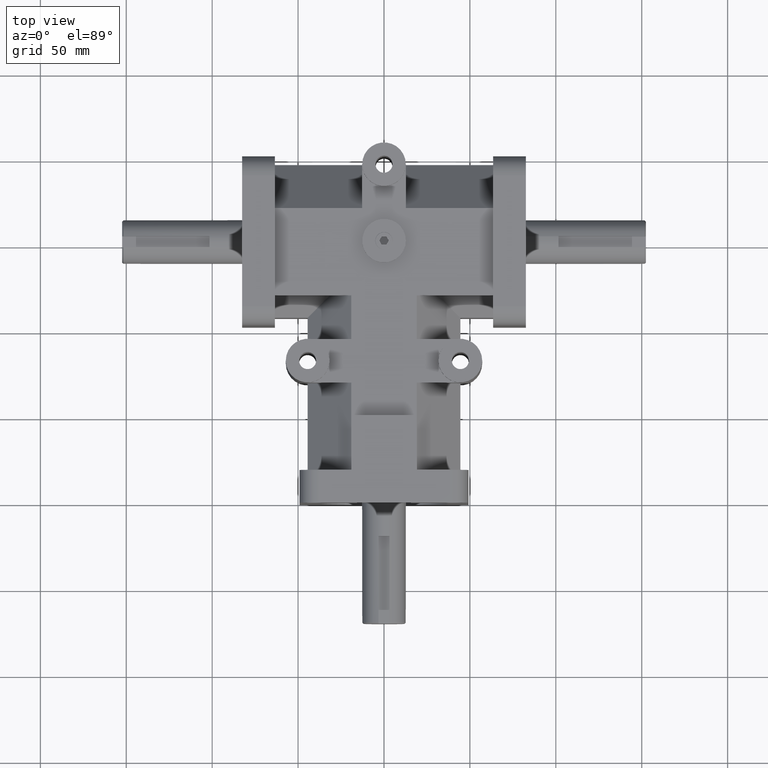
[diagram: clean part render]
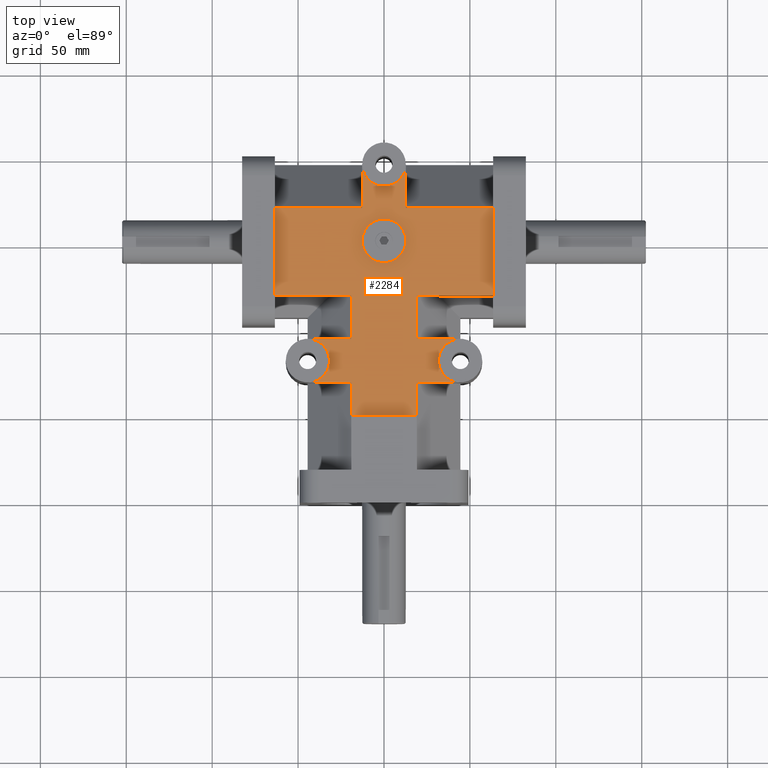
[diagram: same view with one face highlighted and labeled with its STEP entity id]
A machine part, top view. The second image highlights one B-rep face of the part: STEP entity #2284.
In plain terms, the highlighted planar face has unit normal (0, 0, 1).
Its self-contained STEP definition (entity closure, byte-faithful):
#81=CIRCLE('',#2444,0.5);
#82=CIRCLE('',#2445,0.5);
#83=CIRCLE('',#2446,0.5);
#84=CIRCLE('',#2447,0.5);
#175=VERTEX_POINT('',#3250);
#177=VERTEX_POINT('',#3254);
#180=VERTEX_POINT('',#3260);
#181=VERTEX_POINT('',#3261);
#194=VERTEX_POINT('',#3289);
#201=VERTEX_POINT('',#3305);
#202=VERTEX_POINT('',#3307);
#203=VERTEX_POINT('',#3309);
#204=VERTEX_POINT('',#3311);
#205=VERTEX_POINT('',#3313);
#206=VERTEX_POINT('',#3315);
#207=VERTEX_POINT('',#3317);
#208=VERTEX_POINT('',#3319);
#209=VERTEX_POINT('',#3321);
#210=VERTEX_POINT('',#3323);
#211=VERTEX_POINT('',#3325);
#212=VERTEX_POINT('',#3327);
#213=VERTEX_POINT('',#3328);
#214=VERTEX_POINT('',#3330);
#215=VERTEX_POINT('',#3332);
#216=VERTEX_POINT('',#3335);
#413=VECTOR('',#2669,1.);
#421=VECTOR('',#2694,1.);
#429=VECTOR('',#2703,1.);
#430=VECTOR('',#2704,1.);
#431=VECTOR('',#2705,1.);
#432=VECTOR('',#2708,1.);
#433=VECTOR('',#2709,1.);
#434=VECTOR('',#2710,1.);
#435=VECTOR('',#2713,1.);
#436=VECTOR('',#2714,1.);
#437=VECTOR('',#2715,1.);
#438=VECTOR('',#2716,1.);
#439=VECTOR('',#2719,1.);
#440=VECTOR('',#2720,1.);
#614=LINE('',#3255,#413);
#622=LINE('',#3288,#421);
#630=LINE('',#3304,#429);
#631=LINE('',#3306,#430);
#632=LINE('',#3308,#431);
#633=LINE('',#3312,#432);
#634=LINE('',#3314,#433);
#635=LINE('',#3316,#434);
#636=LINE('',#3320,#435);
#637=LINE('',#3322,#436);
#638=LINE('',#3324,#437);
#639=LINE('',#3326,#438);
#640=LINE('',#3331,#439);
#641=LINE('',#3333,#440);
#815=EDGE_CURVE('',#175,#177,#614,.T.);
#818=EDGE_CURVE('',#181,#180,#614,.T.);
#832=EDGE_CURVE('',#194,#181,#622,.T.);
#840=EDGE_CURVE('',#177,#201,#630,.T.);
#841=EDGE_CURVE('',#202,#201,#631,.T.);
#842=EDGE_CURVE('',#203,#202,#632,.T.);
#843=EDGE_CURVE('',#203,#204,#81,.T.);
#844=EDGE_CURVE('',#205,#204,#633,.T.);
#845=EDGE_CURVE('',#194,#205,#631,.T.);
#846=EDGE_CURVE('',#180,#206,#634,.T.);
#847=EDGE_CURVE('',#207,#206,#635,.T.);
#848=EDGE_CURVE('',#207,#208,#82,.T.);
#849=EDGE_CURVE('',#209,#208,#636,.T.);
#850=EDGE_CURVE('',#210,#209,#637,.T.);
#851=EDGE_CURVE('',#210,#211,#638,.T.);
#852=EDGE_CURVE('',#212,#211,#639,.T.);
#853=EDGE_CURVE('',#213,#212,#636,.T.);
#854=EDGE_CURVE('',#213,#214,#83,.T.);
#855=EDGE_CURVE('',#215,#214,#640,.T.);
#856=EDGE_CURVE('',#215,#175,#641,.T.);
#857=EDGE_CURVE('',#216,#216,#84,.T.);
#1174=ORIENTED_EDGE('',*,*,#840,.T.);
#1175=ORIENTED_EDGE('',*,*,#841,.F.);
#1176=ORIENTED_EDGE('',*,*,#842,.F.);
#1177=ORIENTED_EDGE('',*,*,#843,.T.);
#1178=ORIENTED_EDGE('',*,*,#844,.F.);
#1179=ORIENTED_EDGE('',*,*,#845,.F.);
#1180=ORIENTED_EDGE('',*,*,#832,.T.);
#1181=ORIENTED_EDGE('',*,*,#818,.T.);
#1182=ORIENTED_EDGE('',*,*,#846,.T.);
#1183=ORIENTED_EDGE('',*,*,#847,.F.);
#1184=ORIENTED_EDGE('',*,*,#848,.T.);
#1185=ORIENTED_EDGE('',*,*,#849,.F.);
#1186=ORIENTED_EDGE('',*,*,#850,.F.);
#1187=ORIENTED_EDGE('',*,*,#851,.T.);
#1188=ORIENTED_EDGE('',*,*,#852,.F.);
#1189=ORIENTED_EDGE('',*,*,#853,.F.);
#1190=ORIENTED_EDGE('',*,*,#854,.T.);
#1191=ORIENTED_EDGE('',*,*,#855,.F.);
#1192=ORIENTED_EDGE('',*,*,#856,.T.);
#1193=ORIENTED_EDGE('',*,*,#815,.T.);
#1194=ORIENTED_EDGE('',*,*,#857,.T.);
#1819=EDGE_LOOP('',(#1174,#1175,#1176,#1177,#1178,#1179,#1180,#1181,#1182,
#1183,#1184,#1185,#1186,#1187,#1188,#1189,#1190,#1191,#1192,#1193));
#1820=EDGE_LOOP('',(#1194));
#2054=FACE_BOUND('',#1819,.T.);
#2055=FACE_BOUND('',#1820,.T.);
#2284=ADVANCED_FACE('',(#2054,#2055),#3936,.T.);
#2443=AXIS2_PLACEMENT_3D('',#3303,#2702,$);
#2444=AXIS2_PLACEMENT_3D('',#3310,#2706,#2707);
#2445=AXIS2_PLACEMENT_3D('',#3318,#2711,#2712);
#2446=AXIS2_PLACEMENT_3D('',#3329,#2717,#2718);
#2447=AXIS2_PLACEMENT_3D('',#3334,#2721,#2722);
#2669=DIRECTION('',(1.,0.,0.));
#2694=DIRECTION('',(0.,-1.,0.));
#2702=DIRECTION('',(0.,0.,1.));
#2703=DIRECTION('',(0.,1.,0.));
#2704=DIRECTION('',(1.,0.,0.));
#2705=DIRECTION('',(0.,-1.,0.));
#2706=DIRECTION('',(0.,0.,-1.));
#2707=DIRECTION('',(0.5,0.,0.));
#2708=DIRECTION('',(0.,1.,0.));
#2709=DIRECTION('',(0.,-1.,0.));
#2710=DIRECTION('',(1.,0.,0.));
#2711=DIRECTION('',(0.,0.,-1.));
#2712=DIRECTION('',(0.5,0.,0.));
#2713=DIRECTION('',(-1.,0.,0.));
#2714=DIRECTION('',(0.,1.,0.));
#2715=DIRECTION('',(1.,0.,0.));
#2716=DIRECTION('',(0.,-1.,0.));
#2717=DIRECTION('',(0.,0.,-1.));
#2718=DIRECTION('',(0.5,0.,0.));
#2719=DIRECTION('',(1.,0.,0.));
#2720=DIRECTION('',(0.,1.,0.));
#2721=DIRECTION('',(0.,0.,-1.));
#2722=DIRECTION('',(0.5,0.,0.));
#3250=CARTESIAN_POINT('',(0.75,4.75,1.75));
#3254=CARTESIAN_POINT('',(2.5,4.75,1.75));
#3255=CARTESIAN_POINT('',(2.5,4.75,1.75));
#3260=CARTESIAN_POINT('',(-0.75,4.75,1.75));
#3261=CARTESIAN_POINT('',(-2.5,4.75,1.75));
#3288=CARTESIAN_POINT('',(-2.5,4.27896341463415,1.75));
#3289=CARTESIAN_POINT('',(-2.5,6.75,1.75));
#3303=CARTESIAN_POINT('',(5.06976461714945E-016,4.30792682926829,1.75));
#3304=CARTESIAN_POINT('',(2.5,6.02896341463415,1.75));
#3305=CARTESIAN_POINT('',(2.5,6.75,1.75));
#3306=CARTESIAN_POINT('',(1.25,6.75,1.75));
#3307=CARTESIAN_POINT('',(0.500000000000001,6.75,1.75));
#3308=CARTESIAN_POINT('',(0.5,7.75,1.75));
#3309=CARTESIAN_POINT('',(0.5,7.75,1.75));
#3310=CARTESIAN_POINT('',(0.,7.75,1.75));
#3311=CARTESIAN_POINT('',(-0.5,7.75,1.75));
#3312=CARTESIAN_POINT('',(-0.5,7.75,1.75));
#3313=CARTESIAN_POINT('',(-0.5,6.75,1.75));
#3314=CARTESIAN_POINT('',(-0.75,6.65396341463415,1.75));
#3315=CARTESIAN_POINT('',(-0.75,3.75,1.75));
#3316=CARTESIAN_POINT('',(-1.75,3.75,1.75));
#3317=CARTESIAN_POINT('',(-1.75,3.75,1.75));
#3318=CARTESIAN_POINT('',(-1.75,3.25,1.75));
#3319=CARTESIAN_POINT('',(-1.75,2.75,1.75));
#3320=CARTESIAN_POINT('',(-1.75,2.75,1.75));
#3321=CARTESIAN_POINT('',(-0.75,2.75,1.75));
#3322=CARTESIAN_POINT('',(-0.75,4.27896341463415,1.75));
#3323=CARTESIAN_POINT('',(-0.75,2.,1.75));
#3324=CARTESIAN_POINT('',(0.375,2.,1.75));
#3325=CARTESIAN_POINT('',(0.75,2.,1.75));
#3326=CARTESIAN_POINT('',(0.75,2.52896341463415,1.75));
#3327=CARTESIAN_POINT('',(0.75,2.75,1.75));
#3328=CARTESIAN_POINT('',(1.75,2.75,1.75));
#3329=CARTESIAN_POINT('',(1.75,3.25,1.75));
#3330=CARTESIAN_POINT('',(1.75,3.75,1.75));
#3331=CARTESIAN_POINT('',(0.500000000000001,3.75,1.75));
#3332=CARTESIAN_POINT('',(0.75,3.75,1.75));
#3333=CARTESIAN_POINT('',(0.75,6.65396341463415,1.75));
#3334=CARTESIAN_POINT('',(0.,6.,1.75));
#3335=CARTESIAN_POINT('',(-0.5,6.,1.75));
#3936=PLANE('',#2443);